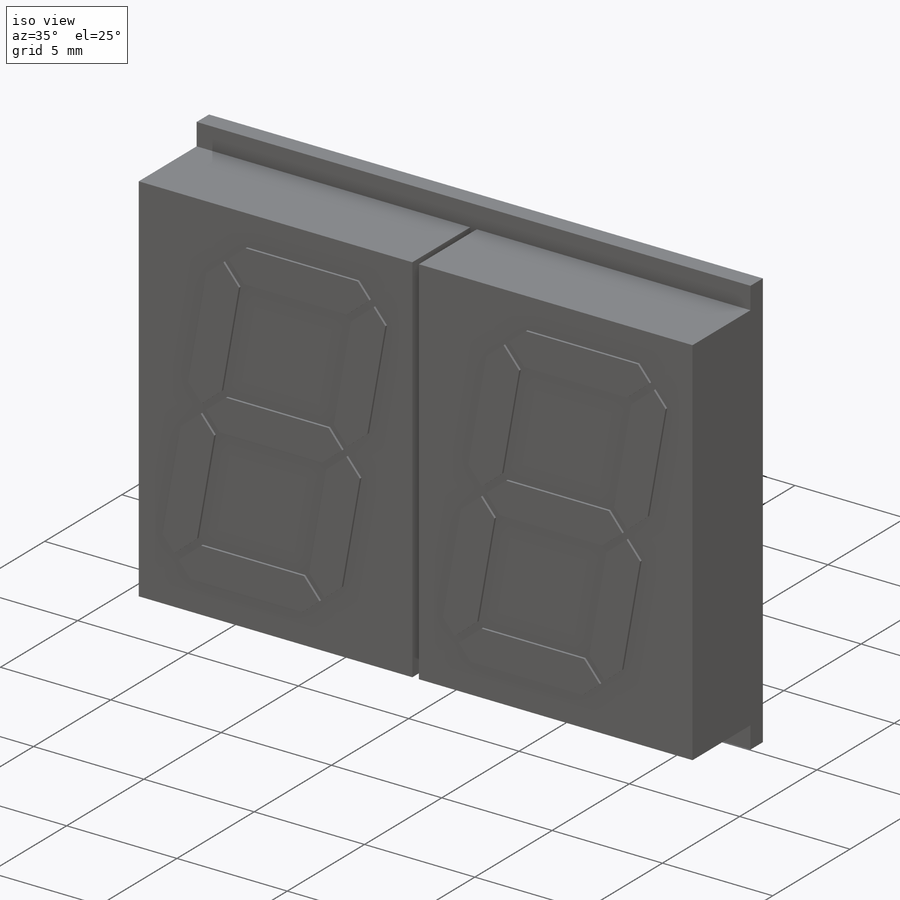
[diagram: iso view]
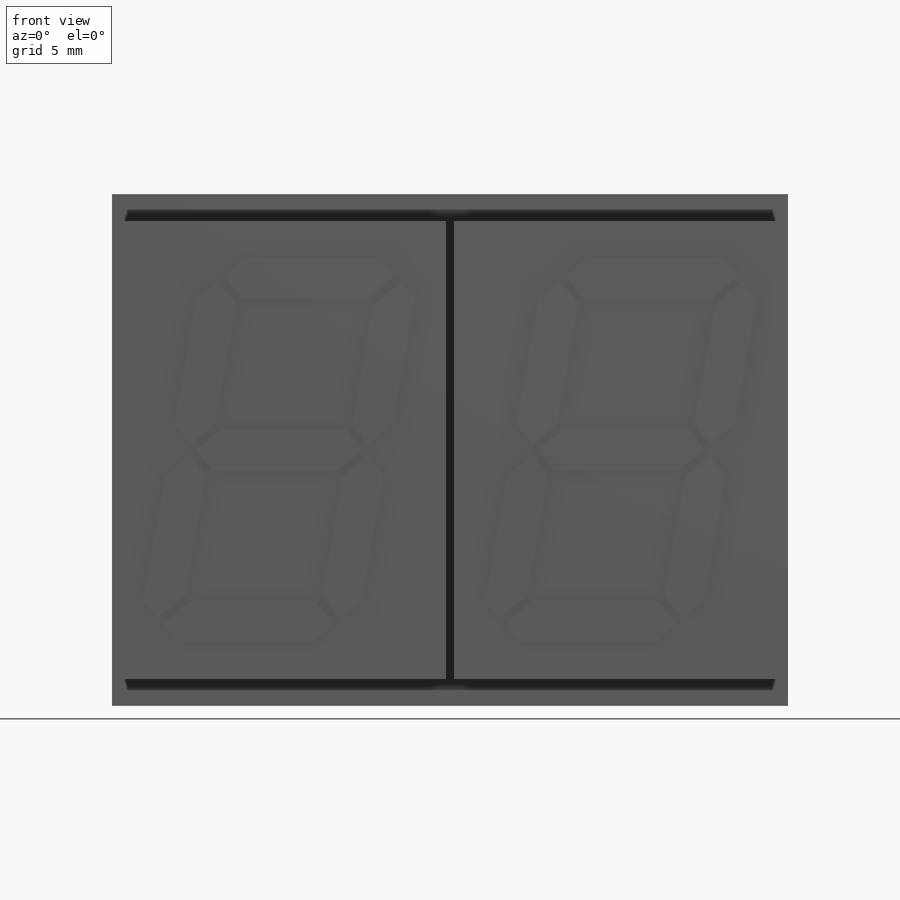
[diagram: front view]
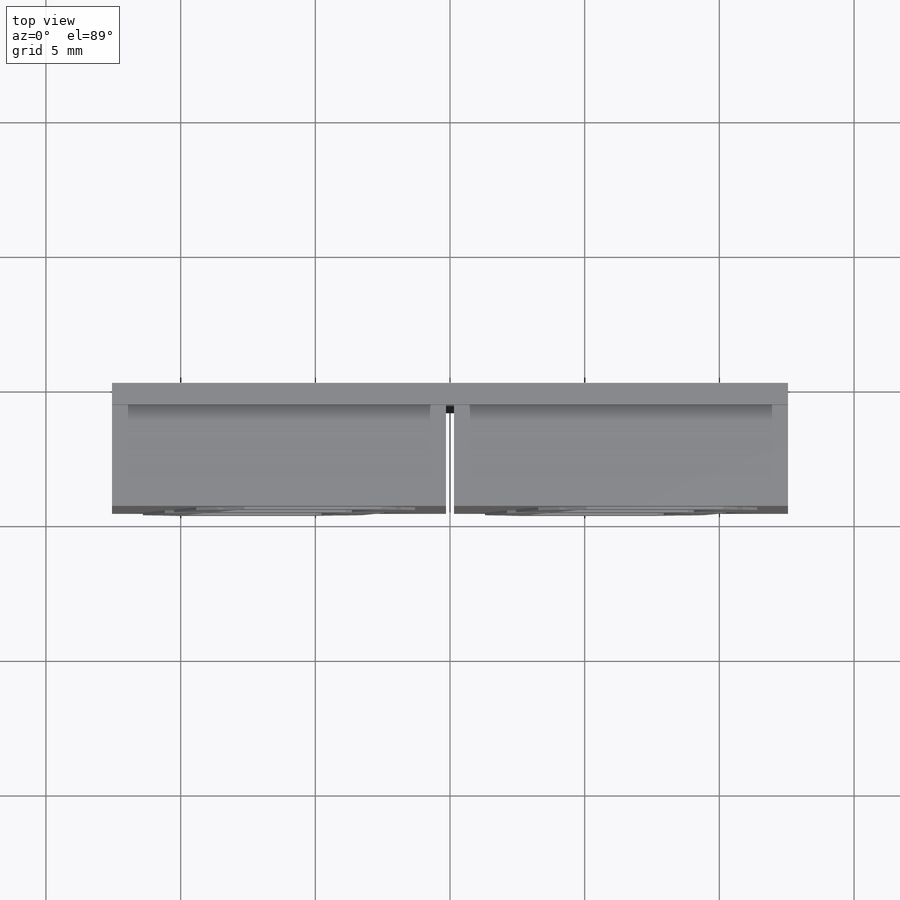
[diagram: top view]
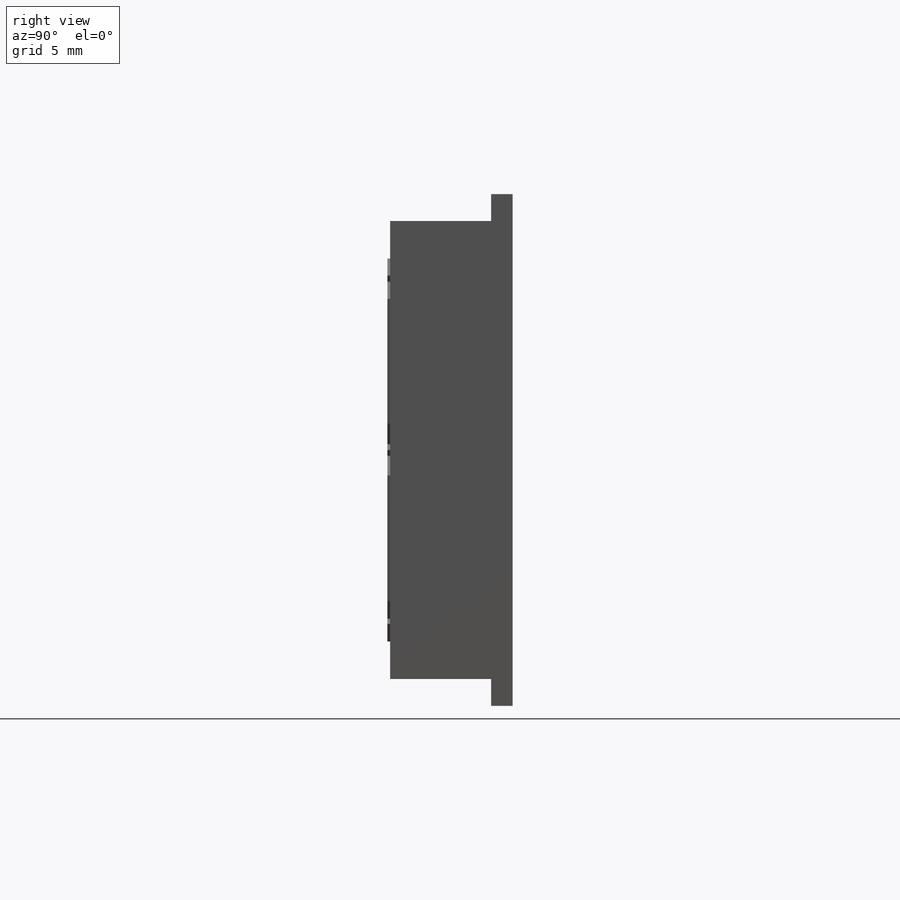
[diagram: right view]
SOLIDWORKS PART (.sldprt)
format: sldprt  version: not decoded by parser v0  size: 240,640 bytes
history: native  units: mm
features: plane x3, sketch x3, extrude x3, material x1 (+13 scaffold rows collapsed)
feature tree (23):
  scaffold x13  (default folders/planes/origin — collapsed)
  material  "Материал <не указан>"
  plane  "Спереди"
  plane  "Сверху"
  plane  "Справа"
  sketch  "Эскиз1"  dims[D1=25.1mm D2=19.0mm]
  extrude  "Бобышка-Вытянуть1"  Depth=0.8mm
  sketch  "Эскиз2"  dims[c1.D1=0.15mm c1.D2=17.0mm c2.D1=0.3mm]
  extrude  "Бобышка-Вытянуть2"  Depth=3.75mm
  sketch  "Эскиз3"  dims[c1.D1=~207.904277mm c2.D1=~179.994958deg c3.D1=~66.809639mm c3.D2=~207.904277mm c4.D2=~180.005042deg c5.D2=~356.356896mm c5.D1=~4.667326mm c6.D1=~179.994958deg c7.D1=~6.199712mm]
  extrude  "Бобышка-Вытянуть3"  Depth=0.1mm
decode coverage: 6 of 6 modeling features carry decoded parameters
note: ~ marks probable driven/reference dimensions
note: suppression state not decoded; provenance and decode notes live in map.json
